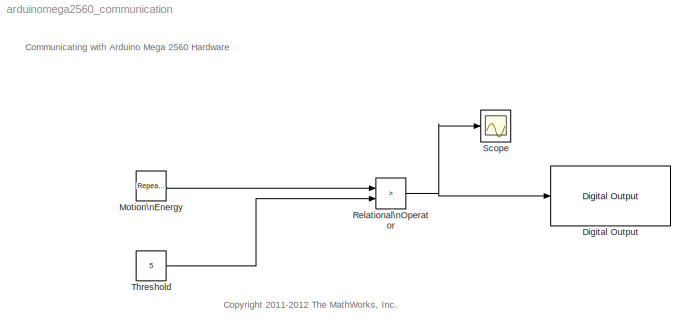
MODEL arduinomega2560_communication
KIND model
BLOCK [Reference] Digital Output  REF=arduinolib/Digital Output
  Ports = [1]
  SID = 100
  SourceBlock = arduinolib/Digital Output
  SourceProductBaseCode = ARDUINO
  SourceProductName = Simulink Support Package for Arduino Hardware
  SourceType = Arduino Digital Output
  pinNumber = 9
BLOCK [Reference] Motion\nEnergy  REF=simulink/Sources/Repeating\nSequence\nStair
  ConRadixGroup = Best Precision: Vector-wise
  LockScale = off
  OutDataType = fixdt(0,8)
  OutDataTypeStr = uint8
  OutMax = []
  OutMin = []
  OutScaling = 2^-12
  OutValues = [ 3\n    2\n    2\n    1\n    1\n    1\n    1\n    1\n    1\n    1\n    1\n    1\n    1\n    2\n    3\n    3\n    4\n    4\n    5\n    5\n    5\n    6\n    5\n    6\n    6\n    6\n    7\n    8\n    8\n    8\n    9\n    9\n    9\n    9\n    9\n   10\n   12\n   12\n   11\n   10\n   10\n    9\n    8\n    7\n    5\n    6\n    5\n    4\n    4\n    5\n    5\n    4\n    4\n    4\n    3\n    3\n    2\n   ...<+652ch>
  OutputDataTypeScalingMode = uint8
  Ports = [0, 1]
  SID = 103
  SourceBlock = simulink/Sources/Repeating\nSequence\nStair
  SourceProductBaseCode = SL
  SourceProductName = Simulink
  SourceType = Repeating Sequence Stair
  tsamp = 0.1
BLOCK [RelationalOperator] Relational\nOperator
  InputSameDT = off
  Operator = >
  OutDataTypeStr = fixdt(1,16)
  Ports = [2, 1]
  SID = 105
BLOCK [Scope] Scope
  Floating = off
  NumInputPorts = 1
  Ports = [1]
  SID = 26
  ScopeSpecificationString = C++SS(StrPVP('Location','[821, 107, 1146, 349]'),StrPVP('Open','off'),MxPVP('AxesTitles',54,'struct(''axes1'',''Motion Energy'')'),MxPVP('ScopeGraphics',57,'struct(''FigureColor'',''[0.501960784313725 0.501960784313725 0.501960784313725]'',''AxesColor'',''[0 0 0]'',''AxesTickColor'',''[1 1 1]'',''LineColors'',''[1 1 0;1 0 1;0 1 1;1 0 0;0 1 0;0 0 1]'',''LineStyles'',''-|-|-|-|-|-'',''LineWidths'','...<+376ch>
BLOCK [Constant] Threshold 
  OutDataTypeStr = uint8
  SID = 85
  SampleTime = 0.1
  Value = 5
ANNOTATION (root): Communicating with Arduino Mega 2560 Hardware
ANNOTATION (root): <copyright redacted>
LINE Motion\nEnergy:1 -> Relational\nOperator:1
NET Relational\nOperator:1 -> Digital Output:1, Scope:1
LINE Threshold :1 -> Relational\nOperator:2
note: NET lines group one-source signal fan-out (src -> all destinations, sorted); 1:1 wires keep LINE
